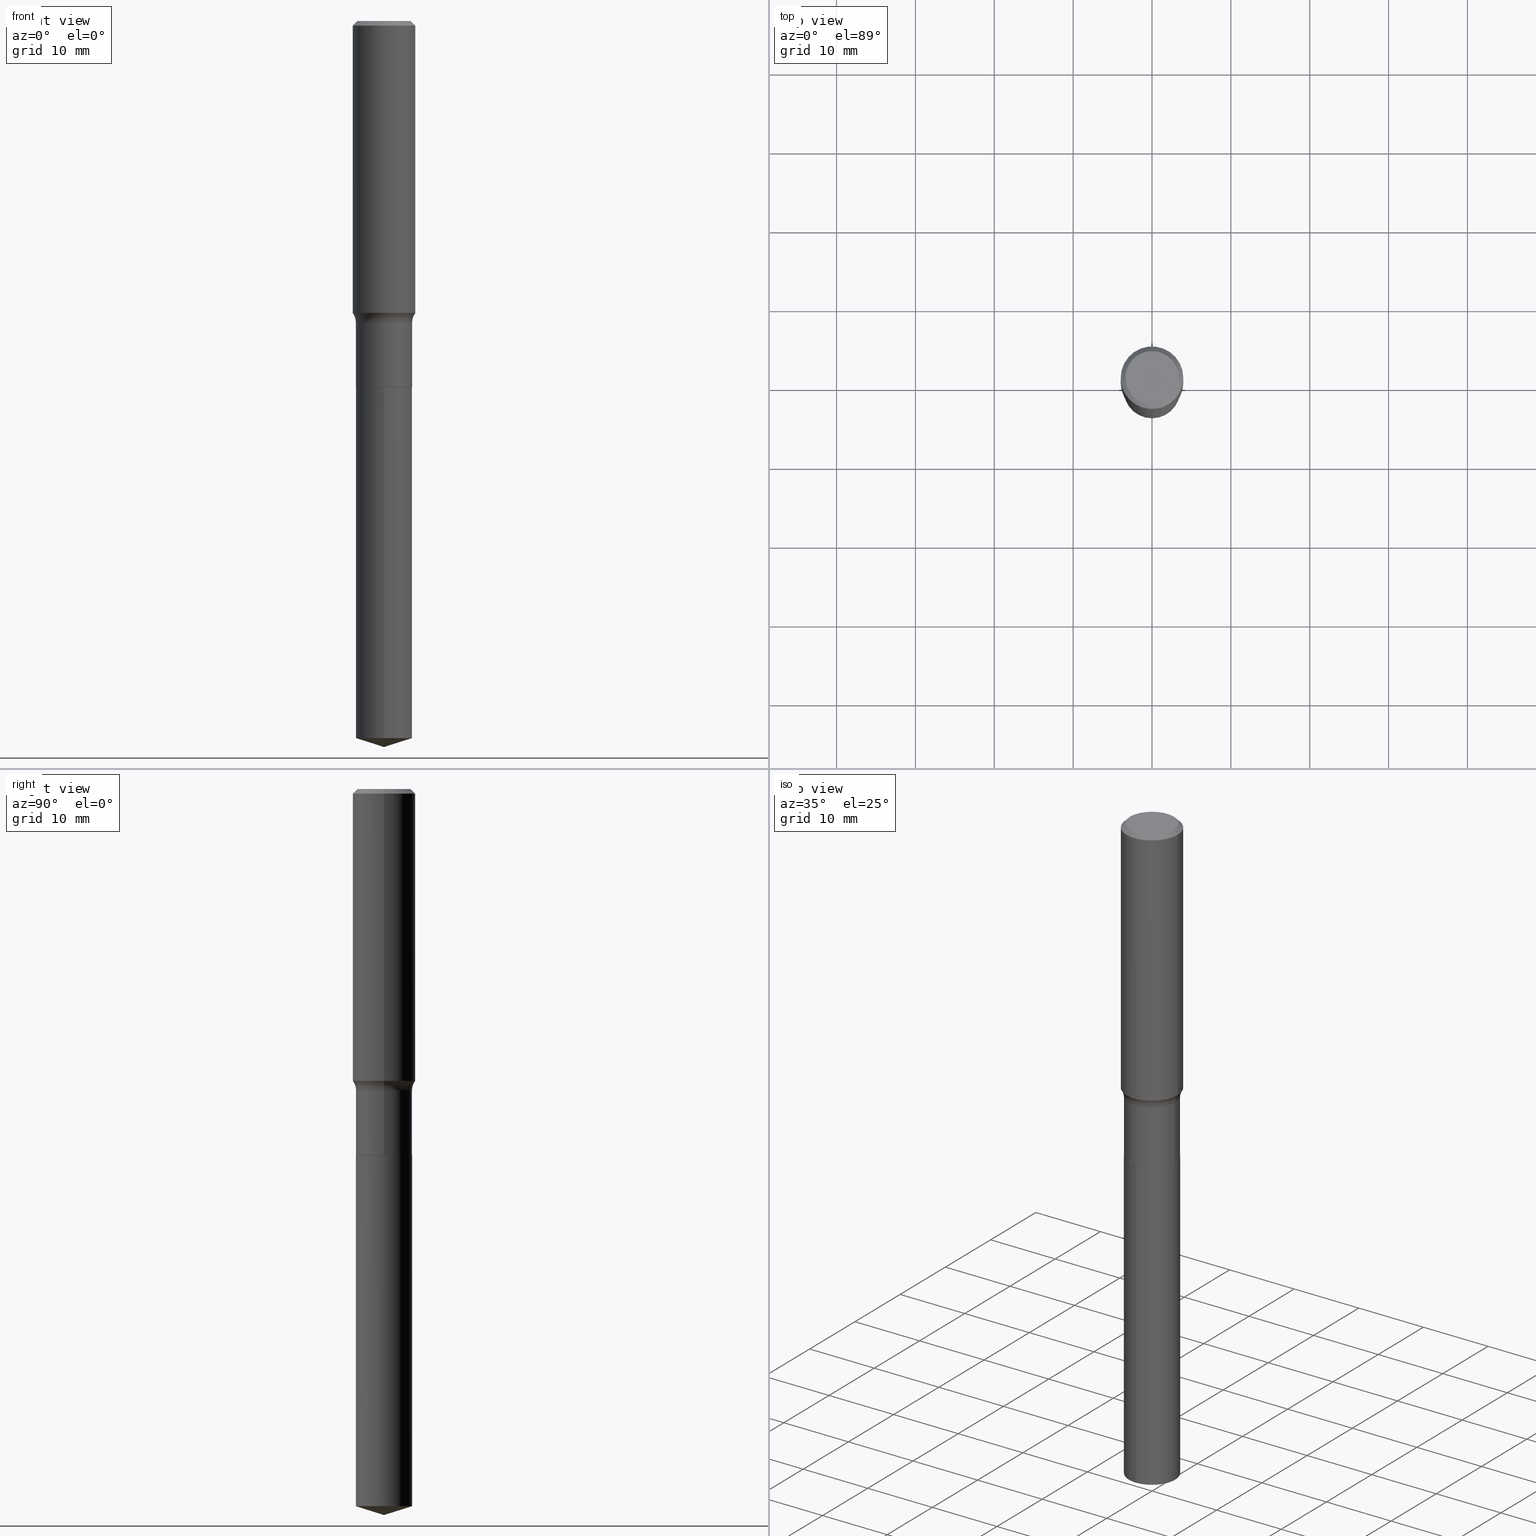
[diagram: canonical four-view strip — front | top / right | iso, engineering-drawing reading convention]
A machine part, canonical four-view strip (front | top / right | iso — engineering-drawing reading convention). The complete STEP part file that produces these views, byte-faithful:
ISO-10303-21;
HEADER;
FILE_DESCRIPTION (( 'STEP AP203' ),
    '1' );
FILE_NAME ('52344.STEP',
    '2024-04-19T13:48:49',
    ( '' ),
    ( '' ),
    'SwSTEP 2.0',
    'SolidWorks 2023',
    '' );
FILE_SCHEMA (( 'CONFIG_CONTROL_DESIGN' ));
ENDSEC;

DATA;
#1 = ADVANCED_FACE ( 'NONE', ( #90 ), #220, .T. ) ;
#2 = AXIS2_PLACEMENT_3D ( 'NONE', #50, #300, #312 ) ;
#3 = EDGE_LOOP ( 'NONE', ( #376, #480, #179, #437 ) ) ;
#4 = CARTESIAN_POINT ( 'NONE',  ( -3.977515959410825406E-47, 5.678838639081919634E-33, 1.626484030117578921E-18 ) ) ;
#5 = EDGE_LOOP ( 'NONE', ( #296, #293, #147, #484 ) ) ;
#6 = FACE_OUTER_BOUND ( 'NONE', #3, .T. ) ;
#7 = CARTESIAN_POINT ( 'NONE',  ( 0.000000000000000000, 0.000000000000000000, 0.000000000000000000 ) ) ;
#8 = EDGE_CURVE ( 'NONE', #417, #154, #205, .T. ) ;
#9 = CARTESIAN_POINT ( 'NONE',  ( -0.2184999999999999720, -3.701096092921463575E-15, -1.504700000000000371 ) ) ;
#10 = CYLINDRICAL_SURFACE ( 'NONE', #302, 0.1404999999999999860 ) ;
#11 = DIRECTION ( 'NONE',  ( -6.982962677686265922E-15, -1.000000000000000000, 3.888751592404644901E-15 ) ) ;
#12 = CARTESIAN_POINT ( 'NONE',  ( -0.1400000000000000133, -5.387318909207247194E-15, -1.827900000000000524 ) ) ;
#13 = EDGE_CURVE ( 'NONE', #448, #140, #337, .T. ) ;
#14 = LINE ( 'NONE', #266, #269 ) ;
#15 = TOROIDAL_SURFACE ( 'NONE', #355, 0.2184999999999999720, 0.07800000000000001377 ) ;
#16 = AXIS2_PLACEMENT_3D ( 'NONE', #4, #491, #190 ) ;
#17 = APPROVAL_ROLE ( '' ) ;
#18 = DIRECTION ( 'NONE',  ( -6.982962677686265922E-15, -1.000000000000000000, 3.888751592404644901E-15 ) ) ;
#19 = APPROVAL_DATE_TIME ( #316, #434 ) ;
#20 = CARTESIAN_POINT ( 'NONE',  ( 5.731567514496448931E-31, -8.183159387913672688E-17, -0.02343750000000014225 ) ) ;
#21 = ORIENTED_EDGE ( 'NONE', *, *, #8, .F. ) ;
#22 = ADVANCED_FACE ( 'NONE', ( #230 ), #237, .T. ) ;
#23 = DIRECTION ( 'NONE',  ( -2.445468190864832708E-29, 3.491482220016842656E-15, 1.000000000000000000 ) ) ;
#24 = ORIENTED_EDGE ( 'NONE', *, *, #158, .F. ) ;
#25 = AXIS2_PLACEMENT_3D ( 'NONE', #436, #98, #444 ) ;
#26 = APPROVAL_DATE_TIME ( #238, #66 ) ;
#27 = PLANE ( 'NONE',  #239 ) ;
#28 = VERTEX_POINT ( 'NONE', #194 ) ;
#29 = LINE ( 'NONE', #408, #445 ) ;
#30 = VECTOR ( 'NONE', #111, 39.37007874015748143 ) ;
#31 = VECTOR ( 'NONE', #160, 39.37007874015748143 ) ;
#32 = ORIENTED_EDGE ( 'NONE', *, *, #56, .F. ) ;
#33 = DIRECTION ( 'NONE',  ( 2.445468190864832428E-29, -3.491482220016842656E-15, -1.000000000000000000 ) ) ;
#34 = ORIENTED_EDGE ( 'NONE', *, *, #189, .F. ) ;
#35 = DIRECTION ( 'NONE',  ( 1.000000000000000000, -6.982962677686268288E-15, 4.876286914311434227E-29 ) ) ;
#36 = ORIENTED_EDGE ( 'NONE', *, *, #272, .F. ) ;
#37 = AXIS2_PLACEMENT_3D ( 'NONE', #440, #324, #178 ) ;
#38 = ORIENTED_EDGE ( 'NONE', *, *, #228, .T. ) ;
#39 = CARTESIAN_POINT ( 'NONE',  ( 0.000000000000000000, 0.000000000000000000, 0.000000000000000000 ) ) ;
#40 = VERTEX_POINT ( 'NONE', #233 ) ;
#41 = EDGE_CURVE ( 'NONE', #191, #223, #135, .T. ) ;
#42 = CARTESIAN_POINT ( 'NONE',  ( 8.864822191885018918E-29, -1.265662304756105547E-14, -3.625000000000000444 ) ) ;
#43 = FACE_OUTER_BOUND ( 'NONE', #215, .T. ) ;
#44 = CIRCLE ( 'NONE', #319, 0.07799999999999999989 ) ;
#45 = DIRECTION ( 'NONE',  ( 1.000000000000000000, -6.982962677686268288E-15, 0.000000000000000000 ) ) ;
#46 = AXIS2_PLACEMENT_3D ( 'NONE', #465, #344, #391 ) ;
#47 = CARTESIAN_POINT ( 'NONE',  ( -8.741345191426991881E-28, 1.248033084850592802E-13, 35.74507874015748143 ) ) ;
#48 = ADVANCED_FACE ( 'NONE', ( #382 ), #63, .T. ) ;
#49 =( NAMED_UNIT ( * ) PLANE_ANGLE_UNIT ( ) SI_UNIT ( $, .RADIAN. ) );
#50 = CARTESIAN_POINT ( 'NONE',  ( 5.731567514496448931E-31, -8.183159387913672688E-17, -0.02343750000000014225 ) ) ;
#51 = PERSON_AND_ORGANIZATION_ROLE ( 'classification_officer' ) ;
#52 = CARTESIAN_POINT ( 'NONE',  ( 3.564761504764175574E-29, -5.089534669111730432E-15, -1.457700664898320175 ) ) ;
#53 = CIRCLE ( 'NONE', #181, 0.1562500000000000000 ) ;
#54 = PRODUCT_DEFINITION_FORMATION_WITH_SPECIFIED_SOURCE ( 'ANY', '', #299, .NOT_KNOWN. ) ;
#55 = CARTESIAN_POINT ( 'NONE',  ( 3.679696912666776556E-29, -5.253631970557282677E-15, -1.504700000000000371 ) ) ;
#56 = EDGE_CURVE ( 'NONE', #227, #451, #196, .T. ) ;
#57 = ORIENTED_EDGE ( 'NONE', *, *, #328, .T. ) ;
#58 = SHAPE_DEFINITION_REPRESENTATION ( #492, #240 ) ;
#59 = FACE_OUTER_BOUND ( 'NONE', #447, .T. ) ;
#60 = PERSON_AND_ORGANIZATION_ROLE ( 'design_supplier' ) ;
#61 = CARTESIAN_POINT ( 'NONE',  ( 9.983125437430286197E-16, 0.1404999999999936300, -1.827900000000000968 ) ) ;
#62 = ORIENTED_EDGE ( 'NONE', *, *, #158, .T. ) ;
#63 = CONICAL_SURFACE ( 'NONE', #253, 0.1400000000000000133, 0.7853981633975336552 ) ;
#64 = DIRECTION ( 'NONE',  ( -2.445468190864832708E-29, 3.491482220016842656E-15, 1.000000000000000000 ) ) ;
#65 = ORIENTED_EDGE ( 'NONE', *, *, #166, .F. ) ;
#66 = APPROVAL ( #323, 'UNSPECIFIED' ) ;
#67 = PERSON ( 'UNSPECIFIED', 'UNSPECIFIED', 'UNSPECIFIED', ('UNSPECIFIED'), ('UNSPECIFIED'), ('UNSPECIFIED') ) ;
#68 = VERTEX_POINT ( 'NONE', #42 ) ;
#69 = AXIS2_PLACEMENT_3D ( 'NONE', #267, #341, #463 ) ;
#70 = DIRECTION ( 'NONE',  ( 0.7071067811866078578, -2.468850131082888544E-15, 0.7071067811864871766 ) ) ;
#71 = EDGE_CURVE ( 'NONE', #223, #191, #143, .T. ) ;
#72 = EDGE_LOOP ( 'NONE', ( #74, #116, #361, #24 ) ) ;
#73 = DIRECTION ( 'NONE',  ( -2.445468190864832708E-29, 3.491482220016842656E-15, 1.000000000000000000 ) ) ;
#74 = ORIENTED_EDGE ( 'NONE', *, *, #195, .T. ) ;
#75 = ORIENTED_EDGE ( 'NONE', *, *, #407, .T. ) ;
#76 = AXIS2_PLACEMENT_3D ( 'NONE', #7, #348, #119 ) ;
#77 = DIRECTION ( 'NONE',  ( 1.000000000000000000, -6.982962677686262766E-15, 0.000000000000000000 ) ) ;
#78 = AXIS2_PLACEMENT_3D ( 'NONE', #128, #419, #77 ) ;
#79 = CC_DESIGN_PERSON_AND_ORGANIZATION_ASSIGNMENT ( #483, #284, ( #54 ) ) ;
#80 =( NAMED_UNIT ( * ) SI_UNIT ( $, .STERADIAN. ) SOLID_ANGLE_UNIT ( ) );
#81 = DIRECTION ( 'NONE',  ( -6.982962677686265922E-15, -1.000000000000000000, 3.500519750498679977E-15 ) ) ;
#82 = FACE_OUTER_BOUND ( 'NONE', #406, .T. ) ;
#83 = DIRECTION ( 'NONE',  ( -2.445468806185136597E-29, 3.491481338843145583E-15, 1.000000000000000000 ) ) ;
#84 = DIRECTION ( 'NONE',  ( 2.445468806185136597E-29, -3.491481338843145583E-15, -1.000000000000000000 ) ) ;
#85 = CIRCLE ( 'NONE', #261, 0.1405000000000000138 ) ;
#86 = DIRECTION ( 'NONE',  ( 1.000000000000000000, -6.982962677686268288E-15, 0.000000000000000000 ) ) ;
#87 = VECTOR ( 'NONE', #339, 39.37007874015748143 ) ;
#88 = EDGE_CURVE ( 'NONE', #224, #149, #390, .T. ) ;
#89 = CARTESIAN_POINT ( 'NONE',  ( 5.731567514496448931E-31, -8.183159387913672688E-17, -0.02343750000000014225 ) ) ;
#90 = FACE_OUTER_BOUND ( 'NONE', #332, .T. ) ;
#91 = DIRECTION ( 'NONE',  ( -2.445468806185136597E-29, 3.491481338843145583E-15, 1.000000000000000000 ) ) ;
#92 = EDGE_CURVE ( 'NONE', #191, #209, #44, .T. ) ;
#93 = DATE_AND_TIME ( #435, #106 ) ;
#94 = DIRECTION ( 'NONE',  ( -6.982962677686265922E-15, -1.000000000000000000, 3.888751592404644901E-15 ) ) ;
#95 = VECTOR ( 'NONE', #70, 39.37007874015748143 ) ;
#96 = EDGE_LOOP ( 'NONE', ( #286, #441, #222 ) ) ;
#97 = AXIS2_PLACEMENT_3D ( 'NONE', #89, #84, #468 ) ;
#98 = DIRECTION ( 'NONE',  ( -2.445468190864832708E-29, 3.491482220016842656E-15, 1.000000000000000000 ) ) ;
#99 = ORIENTED_EDGE ( 'NONE', *, *, #180, .T. ) ;
#100 = CALENDAR_DATE ( 2024, 19, 4 ) ;
#101 = DIRECTION ( 'NONE',  ( -2.445468806185136597E-29, 3.491481338843145583E-15, 1.000000000000000000 ) ) ;
#102 = CYLINDRICAL_SURFACE ( 'NONE', #117, 0.1405000000000000138 ) ;
#103 = VERTEX_POINT ( 'NONE', #462 ) ;
#104 = EDGE_CURVE ( 'NONE', #149, #28, #150, .T. ) ;
#105 = CIRCLE ( 'NONE', #156, 0.1405000000000000138 ) ;
#106 = LOCAL_TIME ( 9, 48, 49.00000000000000000, #212 ) ;
#107 = CARTESIAN_POINT ( 'NONE',  ( -0.1404999999999999860, -4.818669940836683896E-15, -1.504700000000000371 ) ) ;
#108 = ORIENTED_EDGE ( 'NONE', *, *, #398, .T. ) ;
#109 = VERTEX_POINT ( 'NONE', #458 ) ;
#110 = EDGE_CURVE ( 'NONE', #68, #109, #157, .T. ) ;
#111 = DIRECTION ( 'NONE',  ( -2.445468806185136877E-29, 3.491481338843145188E-15, 1.000000000000000000 ) ) ;
#112 = AXIS2_PLACEMENT_3D ( 'NONE', #431, #379, #192 ) ;
#113 = LINE ( 'NONE', #331, #30 ) ;
#114 = PLANE ( 'NONE',  #16 ) ;
#115 = ORIENTED_EDGE ( 'NONE', *, *, #370, .T. ) ;
#116 = ORIENTED_EDGE ( 'NONE', *, *, #88, .T. ) ;
#117 = AXIS2_PLACEMENT_3D ( 'NONE', #317, #23, #402 ) ;
#118 =( LENGTH_UNIT ( ) NAMED_UNIT ( * ) SI_UNIT ( $, .METRE. ) );
#119 = DIRECTION ( 'NONE',  ( 1.000000000000000000, -6.982962677686265922E-15, 4.876176775795935232E-29 ) ) ;
#120 = CARTESIAN_POINT ( 'NONE',  ( 4.470072430825811977E-29, -6.382078739271387549E-15, -1.827900000000000524 ) ) ;
#121 = APPLICATION_PROTOCOL_DEFINITION ( 'international standard', 'config_control_design', 1994, #295 ) ;
#122 = EDGE_CURVE ( 'NONE', #68, #224, #14, .T. ) ;
#123 = CARTESIAN_POINT ( 'NONE',  ( 0.000000000000000000, 0.000000000000000000, 0.000000000000000000 ) ) ;
#124 = FACE_OUTER_BOUND ( 'NONE', #219, .T. ) ;
#125 = CIRCLE ( 'NONE', #37, 0.1400000000000000133 ) ;
#126 = CARTESIAN_POINT ( 'NONE',  ( 8.864822191885018918E-29, -1.265662304756105704E-14, -3.625000000000000444 ) ) ;
#127 = CIRCLE ( 'NONE', #439, 0.1400000000000000133 ) ;
#128 = CARTESIAN_POINT ( 'NONE',  ( 4.470072430825811977E-29, -6.382078739271387549E-15, -1.827900000000000524 ) ) ;
#129 = CARTESIAN_POINT ( 'NONE',  ( 3.679696912666776556E-29, -5.253631970557282677E-15, -1.504700000000000371 ) ) ;
#130 = PERSON_AND_ORGANIZATION_ROLE ( 'design_owner' ) ;
#131 = DIRECTION ( 'NONE',  ( -2.438088387897960049E-29, 3.491481338843145188E-15, 1.000000000000000000 ) ) ;
#132 = EDGE_CURVE ( 'NONE', #209, #40, #288, .T. ) ;
#133 = APPROVAL_STATUS ( 'not_yet_approved' ) ;
#134 = DIRECTION ( 'NONE',  ( -2.445468190864832708E-29, 3.491482220016842656E-15, 1.000000000000000000 ) ) ;
#135 = CIRCLE ( 'NONE', #294, 0.1562500000000001665 ) ;
#136 = CIRCLE ( 'NONE', #69, 0.1404999999999999860 ) ;
#137 = COORDINATED_UNIVERSAL_TIME_OFFSET ( 5, 0, .BEHIND. ) ;
#138 = ORIENTED_EDGE ( 'NONE', *, *, #342, .F. ) ;
#139 = ADVANCED_FACE ( 'NONE', ( #466 ), #433, .T. ) ;
#140 = VERTEX_POINT ( 'NONE', #200 ) ;
#141 = CARTESIAN_POINT ( 'NONE',  ( -0.1562500000000000000, 1.009256324509342545E-15, -0.02343750000000014225 ) ) ;
#142 = ORIENTED_EDGE ( 'NONE', *, *, #328, .F. ) ;
#143 = CIRCLE ( 'NONE', #203, 0.1562500000000001665 ) ;
#144 = AXIS2_PLACEMENT_3D ( 'NONE', #232, #229, #226 ) ;
#145 = ORIENTED_EDGE ( 'NONE', *, *, #366, .T. ) ;
#146 = ADVANCED_FACE ( 'NONE', ( #268 ), #422, .T. ) ;
#147 = ORIENTED_EDGE ( 'NONE', *, *, #189, .T. ) ;
#148 = CARTESIAN_POINT ( 'NONE',  ( 4.470072430825811977E-29, -6.382078739271387549E-15, -1.827900000000000524 ) ) ;
#149 = VERTEX_POINT ( 'NONE', #61 ) ;
#150 = CIRCLE ( 'NONE', #225, 0.1405000000000000138 ) ;
#151 = CARTESIAN_POINT ( 'NONE',  ( 0.1400000000000000133, -7.359693514147464257E-15, -1.827900000000000524 ) ) ;
#152 = ORIENTED_EDGE ( 'NONE', *, *, #71, .T. ) ;
#153 = EDGE_CURVE ( 'NONE', #448, #154, #479, .T. ) ;
#154 = VERTEX_POINT ( 'NONE', #410 ) ;
#155 = DIRECTION ( 'NONE',  ( 7.105427357601001859E-15, 1.000000000000000000, -3.491481338843145583E-15 ) ) ;
#156 = AXIS2_PLACEMENT_3D ( 'NONE', #165, #64, #94 ) ;
#157 = LINE ( 'NONE', #126, #387 ) ;
#158 = EDGE_CURVE ( 'NONE', #109, #28, #206, .T. ) ;
#159 = CARTESIAN_POINT ( 'NONE',  ( 0.000000000000000000, 0.000000000000000000, 0.000000000000000000 ) ) ;
#160 = DIRECTION ( 'NONE',  ( -0.7071067811866078578, 7.493145998870571886E-15, 0.7071067811864871766 ) ) ;
#161 = FACE_OUTER_BOUND ( 'NONE', #5, .T. ) ;
#162 = AXIS2_PLACEMENT_3D ( 'NONE', #249, #131, #362 ) ;
#163 = DIRECTION ( 'NONE',  ( 6.776566513254260504E-15, 0.9537169507482292641, 0.3007057995042652365 ) ) ;
#164 = COORDINATED_UNIVERSAL_TIME_OFFSET ( 5, 0, .BEHIND. ) ;
#165 = CARTESIAN_POINT ( 'NONE',  ( 8.756490347814546766E-29, -1.250195059065504114E-14, -3.580700520162503953 ) ) ;
#166 = EDGE_CURVE ( 'NONE', #380, #103, #125, .T. ) ;
#167 = PERSON_AND_ORGANIZATION ( #67, #347 ) ;
#168 = LINE ( 'NONE', #475, #457 ) ;
#169 = CALENDAR_DATE ( 2024, 19, 4 ) ;
#170 = DIRECTION ( 'NONE',  ( -6.982962677686266711E-15, -1.000000000000000000, 3.491481338843145583E-15 ) ) ;
#171 = AXIS2_PLACEMENT_3D ( 'NONE', #129, #426, #351 ) ;
#172 = ORIENTED_EDGE ( 'NONE', *, *, #132, .T. ) ;
#173 = APPROVAL_PERSON_ORGANIZATION ( #167, #66, #17 ) ;
#174 = ADVANCED_FACE ( 'NONE', ( #276 ), #420, .T. ) ;
#175 = CARTESIAN_POINT ( 'NONE',  ( 4.470072430825811977E-29, -6.382078739271387549E-15, -1.827900000000000524 ) ) ;
#176 = EDGE_LOOP ( 'NONE', ( #65, #241 ) ) ;
#177 = CALENDAR_DATE ( 2024, 19, 4 ) ;
#178 = DIRECTION ( 'NONE',  ( 1.000000000000000000, -6.982962677686262766E-15, 0.000000000000000000 ) ) ;
#179 = ORIENTED_EDGE ( 'NONE', *, *, #489, .F. ) ;
#180 = EDGE_CURVE ( 'NONE', #224, #109, #85, .T. ) ;
#181 = AXIS2_PLACEMENT_3D ( 'NONE', #20, #101, #446 ) ;
#182 = APPROVAL_PERSON_ORGANIZATION ( #236, #434, #364 ) ;
#183 = ORIENTED_EDGE ( 'NONE', *, *, #104, .F. ) ;
#184 = DIRECTION ( 'NONE',  ( -2.445468806185136877E-29, 3.491481338843145188E-15, 1.000000000000000000 ) ) ;
#185 = EDGE_LOOP ( 'NONE', ( #193, #322, #409, #367 ) ) ;
#186 = CARTESIAN_POINT ( 'NONE',  ( 0.1400000000000000133, -7.359693514147464257E-15, -1.827900000000000524 ) ) ;
#187 = ORIENTED_EDGE ( 'NONE', *, *, #56, .T. ) ;
#188 = AXIS2_PLACEMENT_3D ( 'NONE', #123, #91, #274 ) ;
#189 = EDGE_CURVE ( 'NONE', #223, #40, #467, .T. ) ;
#190 = DIRECTION ( 'NONE',  ( -1.000000000000000000, 6.982962677686265922E-15, -4.876176775795935793E-29 ) ) ;
#191 = VERTEX_POINT ( 'NONE', #245 ) ;
#192 = DIRECTION ( 'NONE',  ( -6.982962677686265922E-15, -1.000000000000000000, 3.888751592404644901E-15 ) ) ;
#193 = ORIENTED_EDGE ( 'NONE', *, *, #228, .F. ) ;
#194 = CARTESIAN_POINT ( 'NONE',  ( -9.811062562148757365E-16, -0.1405000000000063975, -1.827899999999999858 ) ) ;
#195 = EDGE_CURVE ( 'NONE', #109, #224, #105, .T. ) ;
#196 = CIRCLE ( 'NONE', #248, 0.1404999999999999860 ) ;
#197 = AXIS2_PLACEMENT_3D ( 'NONE', #258, #373, #35 ) ;
#198 = DIRECTION ( 'NONE',  ( -1.000000000000000000, 7.105427357601005014E-15, 0.000000000000000000 ) ) ;
#199 = DIRECTION ( 'NONE',  ( 0.000000000000000000, 0.000000000000000000, 1.000000000000000000 ) ) ;
#200 = CARTESIAN_POINT ( 'NONE',  ( 0.1328125000000000000, -1.032472148179985084E-15, 3.252968060242010686E-18 ) ) ;
#201 = DIRECTION ( 'NONE',  ( -2.445468806185136597E-29, 3.491481338843145583E-15, 1.000000000000000000 ) ) ;
#202 = MECHANICAL_CONTEXT ( 'NONE', #295, 'mechanical' ) ;
#203 = AXIS2_PLACEMENT_3D ( 'NONE', #52, #201, #45 ) ;
#204 = CC_DESIGN_PERSON_AND_ORGANIZATION_ASSIGNMENT ( #273, #60, ( #54 ) ) ;
#205 = CIRCLE ( 'NONE', #2, 0.1562500000000000000 ) ;
#206 = LINE ( 'NONE', #287, #280 ) ;
#207 = APPLICATION_PROTOCOL_DEFINITION ( 'international standard', 'config_control_design', 1994, #473 ) ;
#208 = DIRECTION ( 'NONE',  ( 1.000000000000000000, -6.982962677686266711E-15, 4.883557194083112340E-29 ) ) ;
#209 = VERTEX_POINT ( 'NONE', #107 ) ;
#210 = DIRECTION ( 'NONE',  ( 1.000000000000000000, -6.982962677686270655E-15, 0.000000000000000000 ) ) ;
#211 = ADVANCED_FACE ( 'NONE', ( #314 ), #102, .T. ) ;
#212 = COORDINATED_UNIVERSAL_TIME_OFFSET ( 5, 0, .BEHIND. ) ;
#213 = CARTESIAN_POINT ( 'NONE',  ( 9.983125437430282253E-16, 0.1404999999999874682, -3.580700520162504397 ) ) ;
#214 = CLOSED_SHELL ( 'NONE', ( #460, #453, #442, #235, #470, #22, #425, #139, #146, #349, #218, #48 ) ) ;
#215 = EDGE_LOOP ( 'NONE', ( #415, #99, #62, #183 ) ) ;
#216 = TOROIDAL_SURFACE ( 'NONE', #144, 0.2184999999999999720, 0.07800000000000001377 ) ;
#217 = COORDINATED_UNIVERSAL_TIME_OFFSET ( 5, 0, .BEHIND. ) ;
#218 = ADVANCED_FACE ( 'NONE', ( #472 ), #405, .F. ) ;
#219 = EDGE_LOOP ( 'NONE', ( #259, #75, #476, #291 ) ) ;
#220 = CONICAL_SURFACE ( 'NONE', #395, 124.8659371009159429, 1.265363707695893680 ) ;
#221 = LINE ( 'NONE', #372, #438 ) ;
#222 = ORIENTED_EDGE ( 'NONE', *, *, #180, .F. ) ;
#223 = VERTEX_POINT ( 'NONE', #247 ) ;
#224 = VERTEX_POINT ( 'NONE', #213 ) ;
#225 = AXIS2_PLACEMENT_3D ( 'NONE', #120, #345, #11 ) ;
#226 = DIRECTION ( 'NONE',  ( 1.000000000000000000, -6.982962677686266711E-15, 4.883557194083112340E-29 ) ) ;
#227 = VERTEX_POINT ( 'NONE', #282 ) ;
#228 = EDGE_CURVE ( 'NONE', #140, #417, #29, .T. ) ;
#229 = DIRECTION ( 'NONE',  ( -2.445468806185136597E-29, 3.491481338843145583E-15, 1.000000000000000000 ) ) ;
#230 = FACE_OUTER_BOUND ( 'NONE', #454, .T. ) ;
#231 = MANIFOLD_SOLID_BREP ( 'Body-Move/Copy2[2]', #214 ) ;
#232 = CARTESIAN_POINT ( 'NONE',  ( 3.679696912666776556E-29, -5.253631970557282677E-15, -1.504700000000000371 ) ) ;
#233 = CARTESIAN_POINT ( 'NONE',  ( 0.1404999999999999860, -6.234738226772203181E-15, -1.504700000000000371 ) ) ;
#234 = CARTESIAN_POINT ( 'NONE',  ( 4.468849696422719736E-29, -6.380332998601966045E-15, -1.827400000000000579 ) ) ;
#235 = ADVANCED_FACE ( 'NONE', ( #59 ), #15, .F. ) ;
#236 = PERSON_AND_ORGANIZATION ( #67, #347 ) ;
#237 = CYLINDRICAL_SURFACE ( 'NONE', #76, 0.1404999999999999860 ) ;
#238 = DATE_AND_TIME ( #177, #338 ) ;
#239 = AXIS2_PLACEMENT_3D ( 'NONE', #175, #33, #412 ) ;
#240 = ADVANCED_BREP_SHAPE_REPRESENTATION ( '52344', ( #404, #231, #263 ), #396 ) ;
#241 = ORIENTED_EDGE ( 'NONE', *, *, #370, .F. ) ;
#242 = DATE_AND_TIME ( #100, #281 ) ;
#243 = DIRECTION ( 'NONE',  ( -1.000000000000000000, 6.982962677686266711E-15, 0.000000000000000000 ) ) ;
#244 = CC_DESIGN_PERSON_AND_ORGANIZATION_ASSIGNMENT ( #397, #130, ( #299 ) ) ;
#245 = CARTESIAN_POINT ( 'NONE',  ( -0.1562500000000002220, -3.979311644486573102E-15, -1.457700664898320175 ) ) ;
#246 = SECURITY_CLASSIFICATION_LEVEL ( 'unclassified' ) ;
#247 = CARTESIAN_POINT ( 'NONE',  ( 0.1562500000000002220, -6.180622587500211183E-15, -1.457700664898320175 ) ) ;
#248 = AXIS2_PLACEMENT_3D ( 'NONE', #234, #305, #308 ) ;
#249 = CARTESIAN_POINT ( 'NONE',  ( 4.470072430825811977E-29, -6.382078739271387549E-15, -1.827900000000000524 ) ) ;
#250 = PRODUCT_RELATED_PRODUCT_CATEGORY ( 'detail', '', ( #299 ) ) ;
#251 = LINE ( 'NONE', #151, #95 ) ;
#252 = ORIENTED_EDGE ( 'NONE', *, *, #195, .F. ) ;
#253 = AXIS2_PLACEMENT_3D ( 'NONE', #423, #464, #469 ) ;
#254 = CONICAL_SURFACE ( 'NONE', #97, 0.1562500000000000000, 0.7853981633974452814 ) ;
#255 = DIRECTION ( 'NONE',  ( 1.000000000000000000, -6.982962677686262766E-15, 0.000000000000000000 ) ) ;
#256 = CC_DESIGN_PERSON_AND_ORGANIZATION_ASSIGNMENT ( #474, #51, ( #330 ) ) ;
#257 = EDGE_LOOP ( 'NONE', ( #414, #115, #329, #32 ) ) ;
#258 = CARTESIAN_POINT ( 'NONE',  ( -7.955031918821650812E-47, 1.135767727816383927E-32, 3.252968060235157842E-18 ) ) ;
#259 = ORIENTED_EDGE ( 'NONE', *, *, #166, .T. ) ;
#260 = ORIENTED_EDGE ( 'NONE', *, *, #13, .T. ) ;
#261 = AXIS2_PLACEMENT_3D ( 'NONE', #482, #327, #18 ) ;
#262 = CC_DESIGN_APPROVAL ( #66, ( #418 ) ) ;
#263 = AXIS2_PLACEMENT_3D ( 'NONE', #159, #199, #350 ) ;
#264 = DIRECTION ( 'NONE',  ( -2.445468806185136597E-29, 3.491481338843145583E-15, 1.000000000000000000 ) ) ;
#265 = DIRECTION ( 'NONE',  ( 1.000000000000000000, -6.982962677686266711E-15, 4.876176775795935232E-29 ) ) ;
#266 = CARTESIAN_POINT ( 'NONE',  ( 8.864824461098341141E-29, -1.265661982616625372E-14, -3.625000000000000444 ) ) ;
#267 = CARTESIAN_POINT ( 'NONE',  ( 3.679696912666776556E-29, -5.253631970557282677E-15, -1.504700000000000371 ) ) ;
#268 = FACE_OUTER_BOUND ( 'NONE', #185, .T. ) ;
#269 = VECTOR ( 'NONE', #163, 39.37007874015748854 ) ;
#270 = CYLINDRICAL_SURFACE ( 'NONE', #112, 0.1405000000000000138 ) ;
#271 = DIRECTION ( 'NONE',  ( 2.445468806185136597E-29, -3.491481338843145583E-15, -1.000000000000000000 ) ) ;
#272 = EDGE_CURVE ( 'NONE', #154, #417, #53, .T. ) ;
#273 = PERSON_AND_ORGANIZATION ( #67, #347 ) ;
#274 = DIRECTION ( 'NONE',  ( 1.000000000000000000, -6.982962677686266711E-15, 4.876176775795935232E-29 ) ) ;
#275 = PERSON_AND_ORGANIZATION ( #67, #347 ) ;
#276 = FACE_OUTER_BOUND ( 'NONE', #96, .T. ) ;
#277 = EDGE_LOOP ( 'NONE', ( #260, #400 ) ) ;
#278 = EDGE_CURVE ( 'NONE', #223, #417, #168, .T. ) ;
#279 = APPROVAL_ROLE ( '' ) ;
#280 = VECTOR ( 'NONE', #134, 39.37007874015748143 ) ;
#281 = LOCAL_TIME ( 9, 48, 49.00000000000000000, #443 ) ;
#282 = CARTESIAN_POINT ( 'NONE',  ( -0.1405000000000000138, -4.818669940836683896E-15, -1.827400000000000579 ) ) ;
#283 = EDGE_LOOP ( 'NONE', ( #152, #57, #21, #297 ) ) ;
#284 = PERSON_AND_ORGANIZATION_ROLE ( 'creator' ) ;
#285 = FACE_OUTER_BOUND ( 'NONE', #325, .T. ) ;
#286 = ORIENTED_EDGE ( 'NONE', *, *, #122, .F. ) ;
#287 = CARTESIAN_POINT ( 'NONE',  ( -9.811062562148757365E-16, -0.1405000000000063975, -1.827899999999999858 ) ) ;
#288 = CIRCLE ( 'NONE', #171, 0.1404999999999999860 ) ;
#289 = CC_DESIGN_DATE_AND_TIME_ASSIGNMENT ( #313, #471, ( #330 ) ) ;
#290 = ORIENTED_EDGE ( 'NONE', *, *, #92, .T. ) ;
#291 = ORIENTED_EDGE ( 'NONE', *, *, #333, .F. ) ;
#292 = DIRECTION ( 'NONE',  ( -6.982962677686265922E-15, -1.000000000000000000, 3.888751592404644901E-15 ) ) ;
#293 = ORIENTED_EDGE ( 'NONE', *, *, #71, .F. ) ;
#294 = AXIS2_PLACEMENT_3D ( 'NONE', #394, #83, #86 ) ;
#295 = APPLICATION_CONTEXT ( 'configuration controlled 3d designs of mechanical parts and assemblies' ) ;
#296 = ORIENTED_EDGE ( 'NONE', *, *, #92, .F. ) ;
#297 = ORIENTED_EDGE ( 'NONE', *, *, #278, .F. ) ;
#298 = LENGTH_MEASURE_WITH_UNIT ( LENGTH_MEASURE( 0.02539999999999999897 ), #118 );
#299 = PRODUCT ( '52344', '52344', '', ( #202 ) ) ;
#300 = DIRECTION ( 'NONE',  ( -2.445468806185136597E-29, 3.491481338843145583E-15, 1.000000000000000000 ) ) ;
#301 = APPROVAL ( #133, 'UNSPECIFIED' ) ;
#302 = AXIS2_PLACEMENT_3D ( 'NONE', #384, #389, #381 ) ;
#303 = DIRECTION ( 'NONE',  ( -6.659769872151636033E-15, -0.9537169507482272657, 0.3007057995042718979 ) ) ;
#304 = CYLINDRICAL_SURFACE ( 'NONE', #487, 0.1562500000000000833 ) ;
#305 = DIRECTION ( 'NONE',  ( -2.445468806185136597E-29, 3.491481338843145583E-15, 1.000000000000000000 ) ) ;
#306 = DIRECTION ( 'NONE',  ( -2.445468806185136597E-29, 3.491481338843145583E-15, 1.000000000000000000 ) ) ;
#307 = CC_DESIGN_PERSON_AND_ORGANIZATION_ASSIGNMENT ( #359, #357, ( #418 ) ) ;
#308 = DIRECTION ( 'NONE',  ( 1.000000000000000000, -6.982962677686267499E-15, 0.000000000000000000 ) ) ;
#309 = AXIS2_PLACEMENT_3D ( 'NONE', #360, #170, #210 ) ;
#310 = CC_DESIGN_APPROVAL ( #434, ( #54 ) ) ;
#311 = CARTESIAN_POINT ( 'NONE',  ( 0.1562500000000000000, -1.172919512267615999E-15, -0.02343750000000014225 ) ) ;
#312 = DIRECTION ( 'NONE',  ( 1.000000000000000000, -6.982962677686266711E-15, 0.000000000000000000 ) ) ;
#313 = DATE_AND_TIME ( #169, #459 ) ;
#314 = FACE_OUTER_BOUND ( 'NONE', #72, .T. ) ;
#315 = ADVANCED_FACE ( 'NONE', ( #285 ), #27, .F. ) ;
#316 = DATE_AND_TIME ( #481, #388 ) ;
#317 = CARTESIAN_POINT ( 'NONE',  ( 4.470072430825811977E-29, -6.382078739271387549E-15, -1.827900000000000524 ) ) ;
#318 = EDGE_LOOP ( 'NONE', ( #142, #336, #488, #36 ) ) ;
#319 = AXIS2_PLACEMENT_3D ( 'NONE', #9, #155, #198 ) ;
#320 = CONICAL_SURFACE ( 'NONE', #78, 0.1400000000000000133, 0.7853981633975336552 ) ;
#321 = DIRECTION ( 'NONE',  ( -2.445468806185136877E-29, 3.491481338843145188E-15, 1.000000000000000000 ) ) ;
#322 = ORIENTED_EDGE ( 'NONE', *, *, #13, .F. ) ;
#323 = APPROVAL_STATUS ( 'not_yet_approved' ) ;
#324 = DIRECTION ( 'NONE',  ( -2.445468806185136597E-29, 3.491481338843145583E-15, 1.000000000000000000 ) ) ;
#325 = EDGE_LOOP ( 'NONE', ( #145, #340 ) ) ;
#326 = DATE_TIME_ROLE ( 'creation_date' ) ;
#327 = DIRECTION ( 'NONE',  ( -2.445468190864832708E-29, 3.491482220016842656E-15, 1.000000000000000000 ) ) ;
#328 = EDGE_CURVE ( 'NONE', #191, #154, #113, .T. ) ;
#329 = ORIENTED_EDGE ( 'NONE', *, *, #333, .T. ) ;
#330 = SECURITY_CLASSIFICATION ( '', '', #246 ) ;
#331 = CARTESIAN_POINT ( 'NONE',  ( -0.1562500000000000833, 1.110223024625157132E-15, -7.685836078523293962E-30 ) ) ;
#332 = EDGE_LOOP ( 'NONE', ( #335, #421, #252 ) ) ;
#333 = EDGE_CURVE ( 'NONE', #380, #451, #251, .T. ) ;
#334 = FACE_OUTER_BOUND ( 'NONE', #277, .T. ) ;
#335 = ORIENTED_EDGE ( 'NONE', *, *, #110, .F. ) ;
#336 = ORIENTED_EDGE ( 'NONE', *, *, #41, .T. ) ;
#337 = CIRCLE ( 'NONE', #429, 0.1328125000000000000 ) ;
#338 = LOCAL_TIME ( 9, 48, 49.00000000000000000, #137 ) ;
#339 = DIRECTION ( 'NONE',  ( -2.445468806185136877E-29, 3.491481338843145188E-15, 1.000000000000000000 ) ) ;
#340 = ORIENTED_EDGE ( 'NONE', *, *, #104, .T. ) ;
#341 = DIRECTION ( 'NONE',  ( -2.445468806185136597E-29, 3.491481338843145583E-15, 1.000000000000000000 ) ) ;
#342 = EDGE_CURVE ( 'NONE', #227, #209, #221, .T. ) ;
#343 = CARTESIAN_POINT ( 'NONE',  ( 9.983125437429854296E-16, 0.1404999999999936300, -1.827900000000000968 ) ) ;
#344 = DIRECTION ( 'NONE',  ( -2.445468806185136597E-29, 3.491481338843145583E-15, 1.000000000000000000 ) ) ;
#345 = DIRECTION ( 'NONE',  ( -2.445468190864832708E-29, 3.491482220016842656E-15, 1.000000000000000000 ) ) ;
#346 = CLOSED_SHELL ( 'NONE', ( #211, #1, #174, #478, #315 ) ) ;
#347 = ORGANIZATION ( 'UNSPECIFIED', 'UNSPECIFIED', '' ) ;
#348 = DIRECTION ( 'NONE',  ( -2.445468806185136597E-29, 3.491481338843145583E-15, 1.000000000000000000 ) ) ;
#349 = ADVANCED_FACE ( 'NONE', ( #334 ), #114, .F. ) ;
#350 = DIRECTION ( 'NONE',  ( 1.000000000000000000, 0.000000000000000000, 0.000000000000000000 ) ) ;
#351 = DIRECTION ( 'NONE',  ( 1.000000000000000000, -6.982962677686267499E-15, 0.000000000000000000 ) ) ;
#352 = UNCERTAINTY_MEASURE_WITH_UNIT (LENGTH_MEASURE( 1.000000000000000082E-05 ), #456, 'distance_accuracy_value', 'NONE');
#353 = CARTESIAN_POINT ( 'NONE',  ( -0.1328125000000000000, 9.683405275697749214E-16, 3.252968060228529177E-18 ) ) ;
#354 = DIRECTION ( 'NONE',  ( -2.445468190864832708E-29, 3.491482220016842656E-15, 1.000000000000000000 ) ) ;
#355 = AXIS2_PLACEMENT_3D ( 'NONE', #55, #399, #208 ) ;
#356 = CIRCLE ( 'NONE', #46, 0.1404999999999999860 ) ;
#357 = PERSON_AND_ORGANIZATION_ROLE ( 'creator' ) ;
#358 = DIRECTION ( 'NONE',  ( -0.7071067811865453523, 2.468850131082234184E-15, -0.7071067811865496822 ) ) ;
#359 = PERSON_AND_ORGANIZATION ( #67, #347 ) ;
#360 = CARTESIAN_POINT ( 'NONE',  ( 0.2184999999999999720, -6.779409315631732805E-15, -1.504700000000000371 ) ) ;
#361 = ORIENTED_EDGE ( 'NONE', *, *, #366, .F. ) ;
#362 = DIRECTION ( 'NONE',  ( 1.000000000000000000, -6.982962677686265922E-15, 4.876176775795935793E-29 ) ) ;
#363 = ORIENTED_EDGE ( 'NONE', *, *, #153, .F. ) ;
#364 = APPROVAL_ROLE ( '' ) ;
#365 = DIRECTION ( 'NONE',  ( 0.7071067811865453523, -7.319954787623248157E-15, -0.7071067811865496822 ) ) ;
#366 = EDGE_CURVE ( 'NONE', #28, #149, #486, .T. ) ;
#367 = ORIENTED_EDGE ( 'NONE', *, *, #272, .T. ) ;
#368 = VECTOR ( 'NONE', #358, 39.37007874015748143 ) ;
#369 = CC_DESIGN_SECURITY_CLASSIFICATION ( #330, ( #54 ) ) ;
#370 = EDGE_CURVE ( 'NONE', #103, #380, #127, .T. ) ;
#371 = ORIENTED_EDGE ( 'NONE', *, *, #8, .T. ) ;
#372 = CARTESIAN_POINT ( 'NONE',  ( -0.1404999999999999860, 9.983125437429406618E-16, -6.911103801808141920E-30 ) ) ;
#373 = DIRECTION ( 'NONE',  ( -2.445468806185136597E-29, 3.491481338843145583E-15, 1.000000000000000000 ) ) ;
#374 = ORIENTED_EDGE ( 'NONE', *, *, #132, .F. ) ;
#375 = CARTESIAN_POINT ( 'NONE',  ( 0.1404999999999999860, -9.811062562149203072E-16, 6.851028369993288332E-30 ) ) ;
#376 = ORIENTED_EDGE ( 'NONE', *, *, #411, .T. ) ;
#377 = CC_DESIGN_APPROVAL ( #301, ( #330 ) ) ;
#378 = EDGE_CURVE ( 'NONE', #140, #448, #430, .T. ) ;
#379 = DIRECTION ( 'NONE',  ( -2.445468190864832708E-29, 3.491482220016842656E-15, 1.000000000000000000 ) ) ;
#380 = VERTEX_POINT ( 'NONE', #186 ) ;
#381 = DIRECTION ( 'NONE',  ( 1.000000000000000000, -6.982962677686265922E-15, 4.876176775795935232E-29 ) ) ;
#382 = FACE_OUTER_BOUND ( 'NONE', #257, .T. ) ;
#383 = DIMENSIONAL_EXPONENTS ( 1.000000000000000000, 0.000000000000000000, 0.000000000000000000, 0.000000000000000000, 0.000000000000000000, 0.000000000000000000, 0.000000000000000000 ) ;
#384 = CARTESIAN_POINT ( 'NONE',  ( 0.000000000000000000, 0.000000000000000000, 0.000000000000000000 ) ) ;
#385 = CARTESIAN_POINT ( 'NONE',  ( -7.955031918821650812E-47, 1.135767727816383927E-32, 3.252968060235157842E-18 ) ) ;
#386 = CC_DESIGN_DATE_AND_TIME_ASSIGNMENT ( #242, #326, ( #418 ) ) ;
#387 = VECTOR ( 'NONE', #303, 39.37007874015748854 ) ;
#388 = LOCAL_TIME ( 9, 48, 49.00000000000000000, #217 ) ;
#389 = DIRECTION ( 'NONE',  ( -2.445468806185136597E-29, 3.491481338843145583E-15, 1.000000000000000000 ) ) ;
#390 = LINE ( 'NONE', #343, #477 ) ;
#391 = DIRECTION ( 'NONE',  ( 1.000000000000000000, -6.982962677686267499E-15, 0.000000000000000000 ) ) ;
#392 = DIRECTION ( 'NONE',  ( -2.445468190864832708E-29, 3.491482220016842656E-15, 1.000000000000000000 ) ) ;
#393 = APPROVAL_STATUS ( 'not_yet_approved' ) ;
#394 = CARTESIAN_POINT ( 'NONE',  ( 3.564761504764175574E-29, -5.089534669111730432E-15, -1.457700664898320175 ) ) ;
#395 = AXIS2_PLACEMENT_3D ( 'NONE', #47, #392, #81 ) ;
#396 =( GEOMETRIC_REPRESENTATION_CONTEXT ( 3 ) GLOBAL_UNCERTAINTY_ASSIGNED_CONTEXT ( ( #352 ) ) GLOBAL_UNIT_ASSIGNED_CONTEXT ( ( #456, #49, #80 ) ) REPRESENTATION_CONTEXT ( 'NONE', 'WORKASPACE' ) );
#397 = PERSON_AND_ORGANIZATION ( #67, #347 ) ;
#398 = EDGE_CURVE ( 'NONE', #451, #40, #452, .T. ) ;
#399 = DIRECTION ( 'NONE',  ( -2.445468806185136597E-29, 3.491481338843145583E-15, 1.000000000000000000 ) ) ;
#400 = ORIENTED_EDGE ( 'NONE', *, *, #378, .T. ) ;
#401 = APPROVAL_DATE_TIME ( #93, #301 ) ;
#402 = DIRECTION ( 'NONE',  ( -6.982962677686265922E-15, -1.000000000000000000, 3.888751592404644901E-15 ) ) ;
#403 = ORIENTED_EDGE ( 'NONE', *, *, #41, .F. ) ;
#404 = MANIFOLD_SOLID_BREP ( 'Body-Move/Copy2[1]', #346 ) ;
#405 = PLANE ( 'NONE',  #162 ) ;
#406 = EDGE_LOOP ( 'NONE', ( #490, #38, #371, #363 ) ) ;
#407 = EDGE_CURVE ( 'NONE', #103, #227, #427, .T. ) ;
#408 = CARTESIAN_POINT ( 'NONE',  ( 0.1562500000000000000, -1.153784406030938435E-15, -0.02343750000000014225 ) ) ;
#409 = ORIENTED_EDGE ( 'NONE', *, *, #153, .T. ) ;
#410 = CARTESIAN_POINT ( 'NONE',  ( -0.1562500000000000000, -1.475460106870276299E-15, -0.02343750000000014225 ) ) ;
#411 = EDGE_CURVE ( 'NONE', #451, #227, #356, .T. ) ;
#412 = DIRECTION ( 'NONE',  ( 6.982962677686265922E-15, 1.000000000000000000, -3.491482220016842656E-15 ) ) ;
#413 = AXIS2_PLACEMENT_3D ( 'NONE', #148, #73, #292 ) ;
#414 = ORIENTED_EDGE ( 'NONE', *, *, #407, .F. ) ;
#415 = ORIENTED_EDGE ( 'NONE', *, *, #88, .F. ) ;
#416 = DIRECTION ( 'NONE',  ( -2.445468806185136597E-29, 3.491481338843145583E-15, 1.000000000000000000 ) ) ;
#417 = VERTEX_POINT ( 'NONE', #311 ) ;
#418 = PRODUCT_DEFINITION ( 'UNKNOWN', '', #54, #455 ) ;
#419 = DIRECTION ( 'NONE',  ( -2.445468806185136597E-29, 3.491481338843145583E-15, 1.000000000000000000 ) ) ;
#420 = CONICAL_SURFACE ( 'NONE', #25, 124.8659371009159429, 1.265363707695893680 ) ;
#421 = ORIENTED_EDGE ( 'NONE', *, *, #122, .T. ) ;
#422 = CONICAL_SURFACE ( 'NONE', #485, 0.1562500000000000000, 0.7853981633974452814 ) ;
#423 = CARTESIAN_POINT ( 'NONE',  ( 4.470072430825811977E-29, -6.382078739271387549E-15, -1.827900000000000524 ) ) ;
#424 = FACE_OUTER_BOUND ( 'NONE', #283, .T. ) ;
#425 = ADVANCED_FACE ( 'NONE', ( #161 ), #216, .F. ) ;
#426 = DIRECTION ( 'NONE',  ( -2.445468806185136597E-29, 3.491481338843145583E-15, 1.000000000000000000 ) ) ;
#427 = LINE ( 'NONE', #12, #31 ) ;
#428 = CARTESIAN_POINT ( 'NONE',  ( 5.731567514496448931E-31, -8.183159387913672688E-17, -0.02343750000000014225 ) ) ;
#429 = AXIS2_PLACEMENT_3D ( 'NONE', #385, #264, #432 ) ;
#430 = CIRCLE ( 'NONE', #197, 0.1328125000000000000 ) ;
#431 = CARTESIAN_POINT ( 'NONE',  ( 4.470072430825811977E-29, -6.382078739271387549E-15, -1.827900000000000524 ) ) ;
#432 = DIRECTION ( 'NONE',  ( 1.000000000000000000, -6.982962677686268288E-15, 4.876286914311434227E-29 ) ) ;
#433 = CYLINDRICAL_SURFACE ( 'NONE', #188, 0.1562500000000000833 ) ;
#434 = APPROVAL ( #393, 'UNSPECIFIED' ) ;
#435 = CALENDAR_DATE ( 2024, 19, 4 ) ;
#436 = CARTESIAN_POINT ( 'NONE',  ( -8.741345191426991881E-28, 1.248033084850592802E-13, 35.74507874015748143 ) ) ;
#437 = ORIENTED_EDGE ( 'NONE', *, *, #398, .F. ) ;
#438 = VECTOR ( 'NONE', #184, 39.37007874015748143 ) ;
#439 = AXIS2_PLACEMENT_3D ( 'NONE', #449, #416, #255 ) ;
#440 = CARTESIAN_POINT ( 'NONE',  ( 4.470072430825811977E-29, -6.382078739271387549E-15, -1.827900000000000524 ) ) ;
#441 = ORIENTED_EDGE ( 'NONE', *, *, #110, .T. ) ;
#442 = ADVANCED_FACE ( 'NONE', ( #424 ), #304, .T. ) ;
#443 = COORDINATED_UNIVERSAL_TIME_OFFSET ( 5, 0, .BEHIND. ) ;
#444 = DIRECTION ( 'NONE',  ( -6.982962677686265922E-15, -1.000000000000000000, 3.500519750498679977E-15 ) ) ;
#445 = VECTOR ( 'NONE', #365, 39.37007874015748143 ) ;
#446 = DIRECTION ( 'NONE',  ( 1.000000000000000000, -6.982962677686266711E-15, 0.000000000000000000 ) ) ;
#447 = EDGE_LOOP ( 'NONE', ( #403, #290, #172, #34 ) ) ;
#448 = VERTEX_POINT ( 'NONE', #353 ) ;
#449 = CARTESIAN_POINT ( 'NONE',  ( 4.470072430825811977E-29, -6.382078739271387549E-15, -1.827900000000000524 ) ) ;
#450 = APPROVAL_PERSON_ORGANIZATION ( #275, #301, #279 ) ;
#451 = VERTEX_POINT ( 'NONE', #461 ) ;
#452 = LINE ( 'NONE', #375, #87 ) ;
#453 = ADVANCED_FACE ( 'NONE', ( #82 ), #254, .T. ) ;
#454 = EDGE_LOOP ( 'NONE', ( #138, #187, #108, #374 ) ) ;
#455 = DESIGN_CONTEXT ( 'detailed design', #473, 'design' ) ;
#456 =( CONVERSION_BASED_UNIT ( 'INCH', #298 ) LENGTH_UNIT ( ) NAMED_UNIT ( #383 ) );
#457 = VECTOR ( 'NONE', #321, 39.37007874015748143 ) ;
#458 = CARTESIAN_POINT ( 'NONE',  ( -9.811062562148327436E-16, -0.1405000000000125038, -3.580700520162503064 ) ) ;
#459 = LOCAL_TIME ( 9, 48, 49.00000000000000000, #164 ) ;
#460 = ADVANCED_FACE ( 'NONE', ( #124 ), #320, .T. ) ;
#461 = CARTESIAN_POINT ( 'NONE',  ( 0.1404999999999999860, -7.361439254816886550E-15, -1.827400000000000579 ) ) ;
#462 = CARTESIAN_POINT ( 'NONE',  ( -0.1400000000000000133, -5.384669682033135993E-15, -1.827900000000000524 ) ) ;
#463 = DIRECTION ( 'NONE',  ( 1.000000000000000000, -6.982962677686267499E-15, 0.000000000000000000 ) ) ;
#464 = DIRECTION ( 'NONE',  ( -2.445468806185136597E-29, 3.491481338843145583E-15, 1.000000000000000000 ) ) ;
#465 = CARTESIAN_POINT ( 'NONE',  ( 4.468849696422719736E-29, -6.380332998601966045E-15, -1.827400000000000579 ) ) ;
#466 = FACE_OUTER_BOUND ( 'NONE', #318, .T. ) ;
#467 = CIRCLE ( 'NONE', #309, 0.07799999999999999989 ) ;
#468 = DIRECTION ( 'NONE',  ( -1.000000000000000000, 6.982962677686266711E-15, 0.000000000000000000 ) ) ;
#469 = DIRECTION ( 'NONE',  ( 1.000000000000000000, -6.982962677686262766E-15, 0.000000000000000000 ) ) ;
#470 = ADVANCED_FACE ( 'NONE', ( #6 ), #10, .T. ) ;
#471 = DATE_TIME_ROLE ( 'classification_date' ) ;
#472 = FACE_OUTER_BOUND ( 'NONE', #176, .T. ) ;
#473 = APPLICATION_CONTEXT ( 'configuration controlled 3d designs of mechanical parts and assemblies' ) ;
#474 = PERSON_AND_ORGANIZATION ( #67, #347 ) ;
#475 = CARTESIAN_POINT ( 'NONE',  ( 0.1562500000000000833, -1.091087918388479765E-15, 7.619026212181153180E-30 ) ) ;
#476 = ORIENTED_EDGE ( 'NONE', *, *, #411, .F. ) ;
#477 = VECTOR ( 'NONE', #354, 39.37007874015748143 ) ;
#478 = ADVANCED_FACE ( 'NONE', ( #43 ), #270, .T. ) ;
#479 = LINE ( 'NONE', #141, #368 ) ;
#480 = ORIENTED_EDGE ( 'NONE', *, *, #342, .T. ) ;
#481 = CALENDAR_DATE ( 2024, 19, 4 ) ;
#482 = CARTESIAN_POINT ( 'NONE',  ( 8.756490347814546766E-29, -1.250195059065504114E-14, -3.580700520162503953 ) ) ;
#483 = PERSON_AND_ORGANIZATION ( #67, #347 ) ;
#484 = ORIENTED_EDGE ( 'NONE', *, *, #489, .T. ) ;
#485 = AXIS2_PLACEMENT_3D ( 'NONE', #428, #271, #243 ) ;
#486 = CIRCLE ( 'NONE', #413, 0.1405000000000000138 ) ;
#487 = AXIS2_PLACEMENT_3D ( 'NONE', #39, #306, #265 ) ;
#488 = ORIENTED_EDGE ( 'NONE', *, *, #278, .T. ) ;
#489 = EDGE_CURVE ( 'NONE', #40, #209, #136, .T. ) ;
#490 = ORIENTED_EDGE ( 'NONE', *, *, #378, .F. ) ;
#491 = DIRECTION ( 'NONE',  ( 2.438088387897960049E-29, -3.491481338843145188E-15, -1.000000000000000000 ) ) ;
#492 = PRODUCT_DEFINITION_SHAPE ( 'NONE', 'NONE',  #418 ) ;
ENDSEC;
END-ISO-10303-21;
